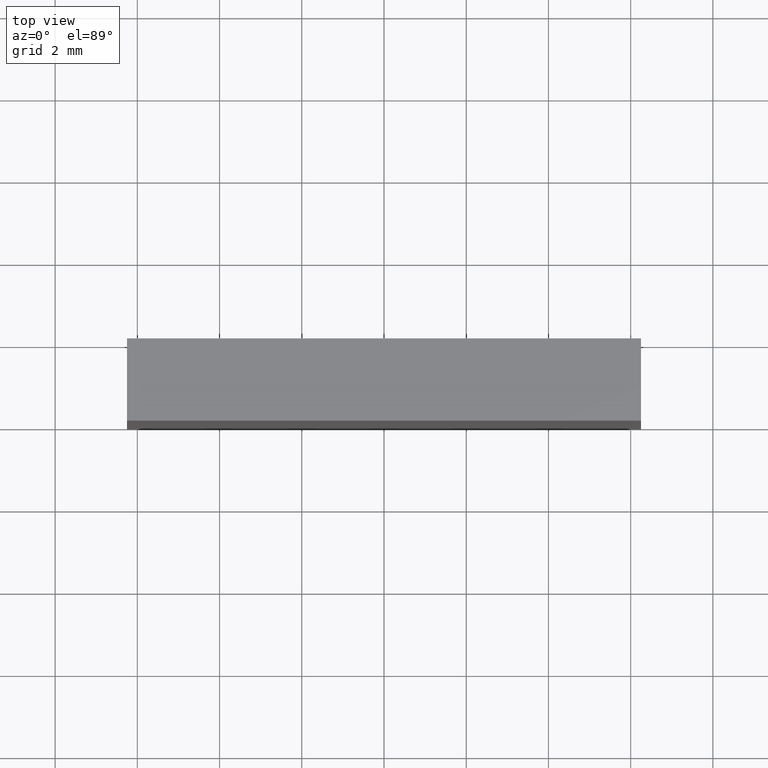
[diagram: clean part render]
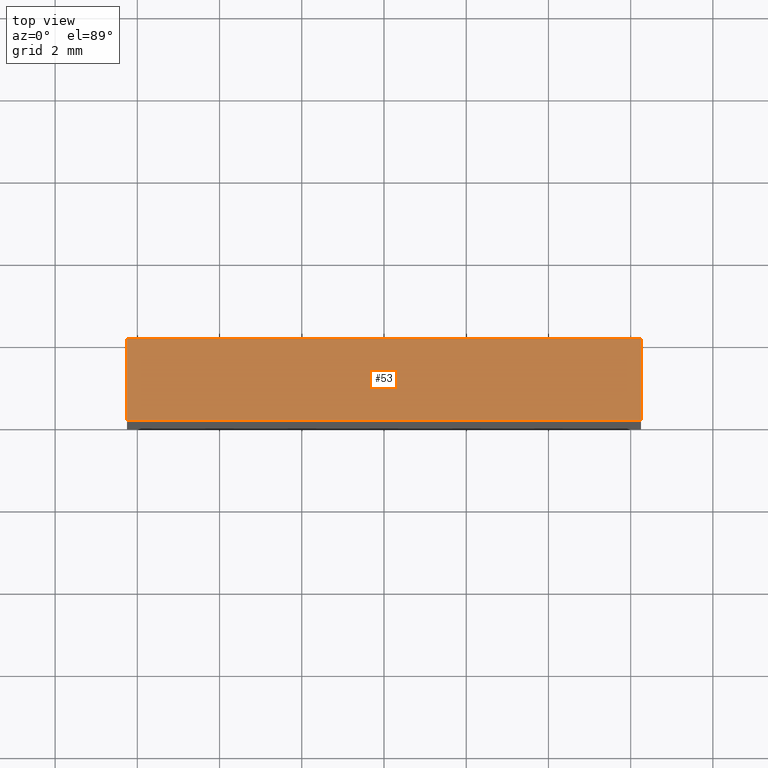
[diagram: same view with one face highlighted and labeled with its STEP entity id]
A machine part, top view. The second image highlights one B-rep face of the part: STEP entity #53.
In plain terms, the highlighted planar face has unit normal (0, 0, -1).
Its self-contained STEP definition (entity closure, byte-faithful):
#8 = EDGE_CURVE ( 'NONE', #190, #111, #85, .T. ) ;
#11 = DIRECTION ( 'NONE',  ( 0.0000000000000000000, 0.0000000000000000000, -1.000000000000000000 ) ) ;
#24 = DIRECTION ( 'NONE',  ( -0.0000000000000000000, -1.000000000000000000, -0.0000000000000000000 ) ) ;
#37 = CARTESIAN_POINT ( 'NONE',  ( -6.250000000000000900, 2.000000000000000000, 6.249999999999998200 ) ) ;
#38 = PLANE ( 'NONE',  #148 ) ;
#42 = CARTESIAN_POINT ( 'NONE',  ( -6.250000000000000900, 2.000000000000000000, 6.249999999999998200 ) ) ;
#45 = VECTOR ( 'NONE', #24, 1000.000000000000000 ) ;
#47 = ORIENTED_EDGE ( 'NONE', *, *, #90, .T. ) ;
#52 = DIRECTION ( 'NONE',  ( -0.0000000000000000000, -1.000000000000000000, -0.0000000000000000000 ) ) ;
#53 = ADVANCED_FACE ( 'NONE', ( #121 ), #38, .F. ) ;
#76 = CARTESIAN_POINT ( 'NONE',  ( -6.250000000000000900, 0.0000000000000000000, 6.249999999999998200 ) ) ;
#81 = CARTESIAN_POINT ( 'NONE',  ( -6.250000000000000900, 2.000000000000000000, 6.249999999999998200 ) ) ;
#82 = VECTOR ( 'NONE', #143, 1000.000000000000000 ) ;
#83 = ORIENTED_EDGE ( 'NONE', *, *, #126, .T. ) ;
#85 = LINE ( 'NONE', #88, #45 ) ;
#88 = CARTESIAN_POINT ( 'NONE',  ( 6.249999999999999100, 2.000000000000000000, 6.249999999999998200 ) ) ;
#90 = EDGE_CURVE ( 'NONE', #179, #111, #162, .T. ) ;
#94 = EDGE_CURVE ( 'NONE', #100, #190, #185, .T. ) ;
#95 = CARTESIAN_POINT ( 'NONE',  ( 6.249999999999999100, 2.000000000000000000, 6.249999999999998200 ) ) ;
#100 = VERTEX_POINT ( 'NONE', #81 ) ;
#111 = VERTEX_POINT ( 'NONE', #202 ) ;
#121 = FACE_OUTER_BOUND ( 'NONE', #171, .T. ) ;
#122 = ORIENTED_EDGE ( 'NONE', *, *, #8, .F. ) ;
#123 = DIRECTION ( 'NONE',  ( -1.000000000000000000, 0.0000000000000000000, -0.0000000000000000000 ) ) ;
#126 = EDGE_CURVE ( 'NONE', #100, #179, #181, .T. ) ;
#129 = DIRECTION ( 'NONE',  ( 1.000000000000000000, 0.0000000000000000000, 0.0000000000000000000 ) ) ;
#143 = DIRECTION ( 'NONE',  ( 1.000000000000000000, 0.0000000000000000000, 0.0000000000000000000 ) ) ;
#144 = VECTOR ( 'NONE', #52, 1000.000000000000000 ) ;
#148 = AXIS2_PLACEMENT_3D ( 'NONE', #42, #11, #123 ) ;
#152 = ORIENTED_EDGE ( 'NONE', *, *, #94, .F. ) ;
#155 = VECTOR ( 'NONE', #129, 1000.000000000000000 ) ;
#160 = CARTESIAN_POINT ( 'NONE',  ( -6.250000000000000900, 0.0000000000000000000, 6.249999999999998200 ) ) ;
#162 = LINE ( 'NONE', #160, #155 ) ;
#171 = EDGE_LOOP ( 'NONE', ( #47, #122, #152, #83 ) ) ;
#179 = VERTEX_POINT ( 'NONE', #76 ) ;
#181 = LINE ( 'NONE', #187, #144 ) ;
#185 = LINE ( 'NONE', #37, #82 ) ;
#187 = CARTESIAN_POINT ( 'NONE',  ( -6.250000000000000900, 2.000000000000000000, 6.249999999999998200 ) ) ;
#190 = VERTEX_POINT ( 'NONE', #95 ) ;
#202 = CARTESIAN_POINT ( 'NONE',  ( 6.249999999999999100, 0.0000000000000000000, 6.249999999999998200 ) ) ;